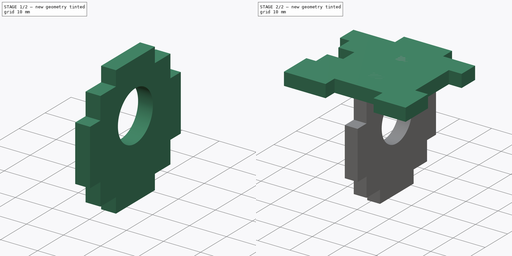
[diagram: build sequence overview — one tinted view per stage of 2, left to right]
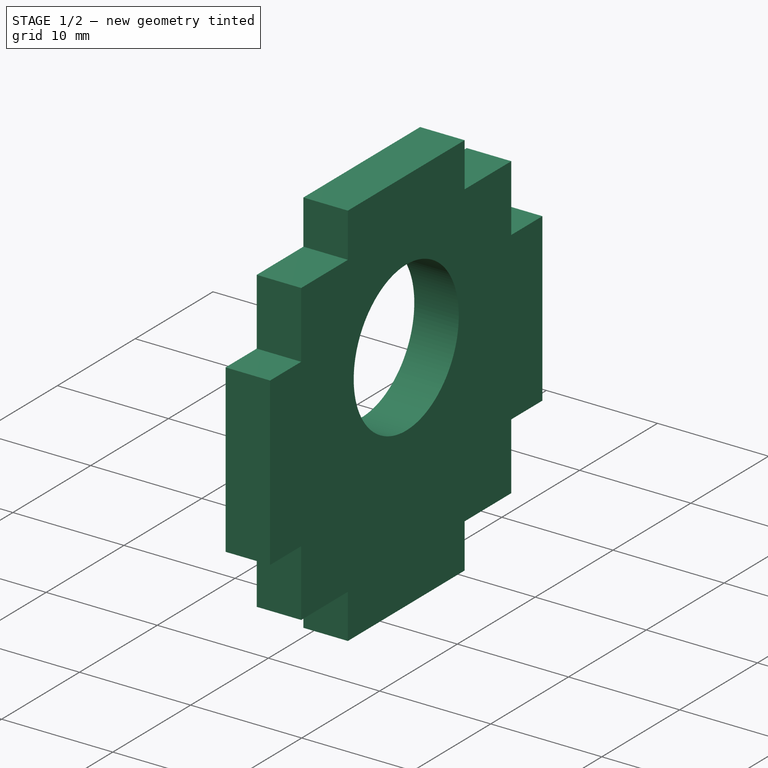
[diagram: stage 1 of 2 — iso view after this stage's code; geometry added in this stage tinted green]
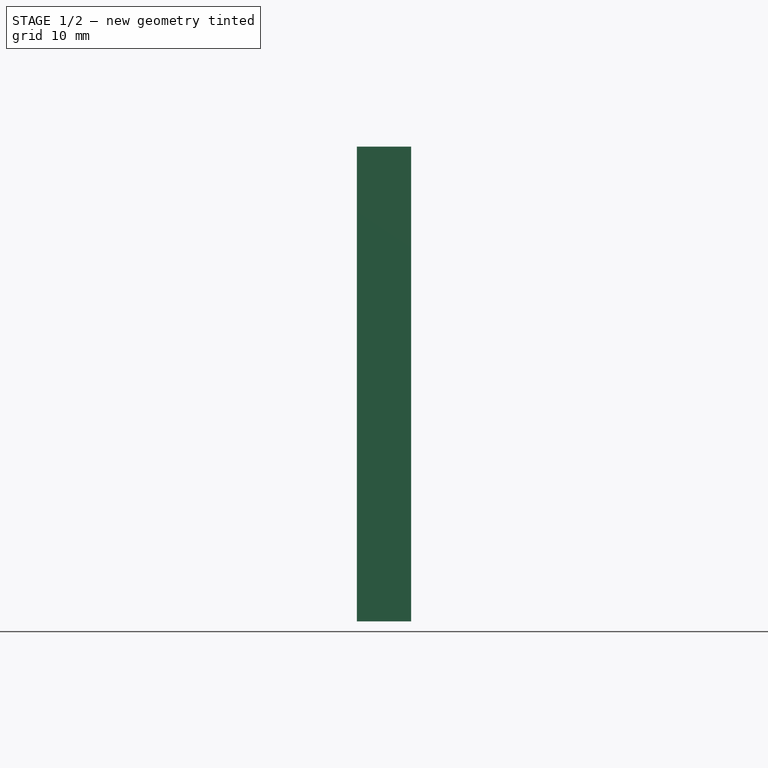
[diagram: stage 1 of 2 — front view after this stage's code; geometry added in this stage tinted green]
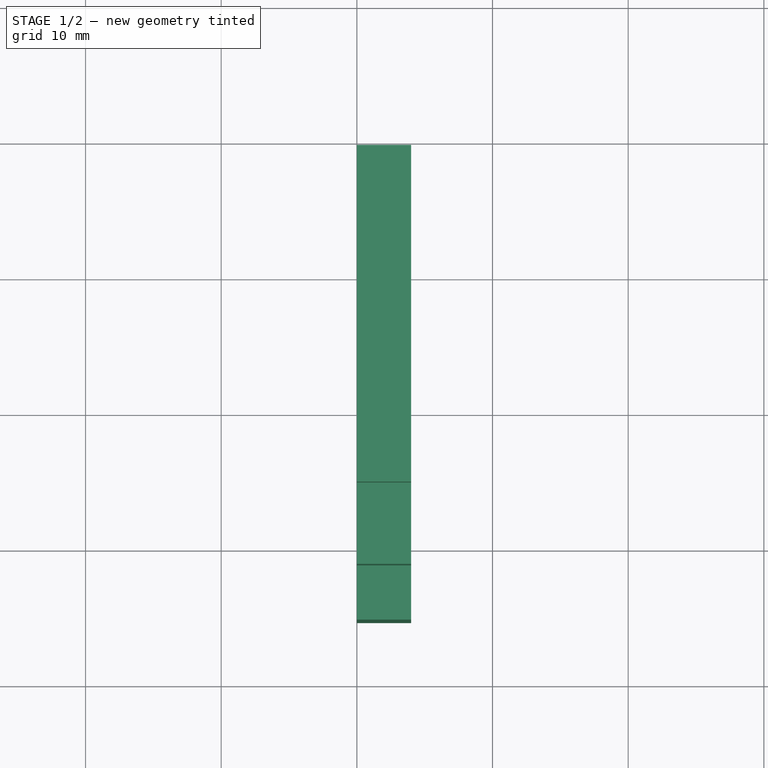
[diagram: stage 1 of 2 — top view after this stage's code; geometry added in this stage tinted green]
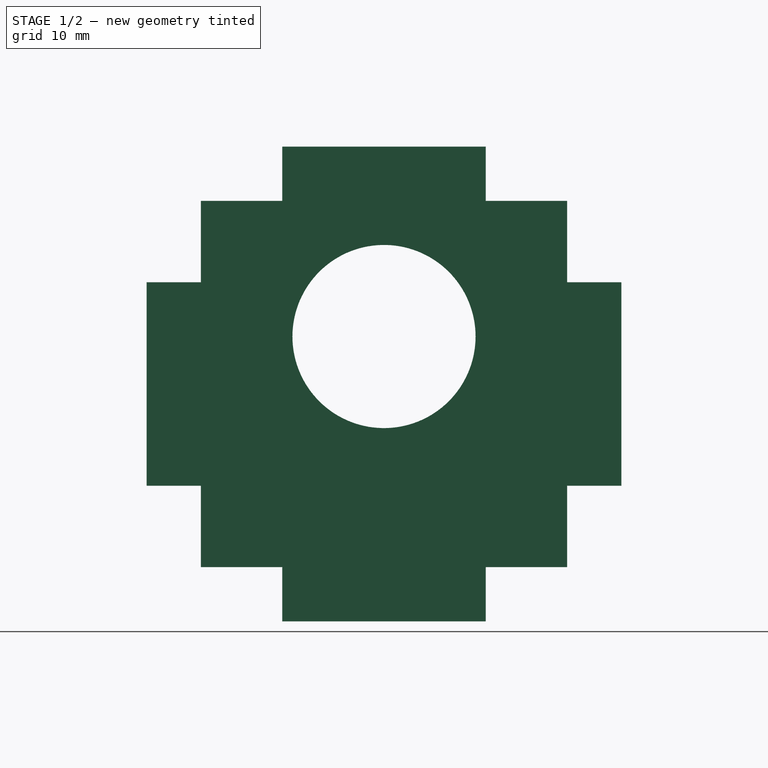
[diagram: stage 1 of 2 — right view after this stage's code; geometry added in this stage tinted green]
FCSTD DOCUMENT  (FreeCAD 0.19R24291 (Git))
Label: ButtonBox
License: All rights reserved
LicenseURL: http://en.wikipedia.org/wiki/All_rights_reserved
objects: Sketcher::SketchObject×2, PartDesign::Pad×2, PartDesign::Body×2, TechDraw::DrawViewPart×2, TechDraw::DrawSVGTemplate×1, TechDraw::DrawPage×1
note: 8 computed .brp shape members not serialized (recipe doc carries the construction recipe); baked Part::Feature solids carry a one-line shape summary decoded from their .brp

FEATURE [PartDesign::Body] Body  label="Wall"
  Group = -> [Sketch,Pad]
  Origin = -> Origin
  Tip = -> Pad
FEATURE [Sketcher::SketchObject] Sketch001
  FullyConstrained = true
  MapMode = 5
  Placement = pos=(0,0,0) rot=(0.57735,0.57735,0.57735;2.0944rad)
  Support = -> [YZ_Plane001]
  sketch-geometry (21):
    g0: LineSegment StartX=-5.5 StartY=0 StartZ=0 EndX=-5.5 EndY=4 EndZ=0
    g1: LineSegment StartX=-5.5 StartY=4 StartZ=0 EndX=9.5 EndY=4 EndZ=0
    g2: LineSegment StartX=9.5 StartY=4 StartZ=0 EndX=9.5 EndY=0 EndZ=0
    g3: LineSegment StartX=9.5 StartY=0 StartZ=0 EndX=15.5 EndY=0 EndZ=0
    g4: LineSegment StartX=15.5 StartY=0 StartZ=0 EndX=15.5 EndY=-6 EndZ=0
    g5: LineSegment StartX=15.5 StartY=-6 StartZ=0 EndX=19.5 EndY=-6 EndZ=0
    g6: LineSegment StartX=19.5 StartY=-6 StartZ=0 EndX=19.5 EndY=-21 EndZ=0
    g7: LineSegment StartX=19.5 StartY=-21 StartZ=0 EndX=15.5 EndY=-21 EndZ=0
    g8: LineSegment StartX=15.5 StartY=-21 StartZ=0 EndX=15.5 EndY=-27 EndZ=0
    g9: LineSegment StartX=15.5 StartY=-27 StartZ=0 EndX=9.5 EndY=-27 EndZ=0
    g10: LineSegment StartX=9.5 StartY=-27 StartZ=0 EndX=9.5 EndY=-31 EndZ=0
    g11: LineSegment StartX=9.5 StartY=-31 StartZ=0 EndX=-5.5 EndY=-31 EndZ=0
    g12: LineSegment StartX=-5.5 StartY=-31 StartZ=0 EndX=-5.5 EndY=-27 EndZ=0
    g13: LineSegment StartX=-5.5 StartY=-27 StartZ=0 EndX=-11.5 EndY=-27 EndZ=0
    g14: LineSegment StartX=-11.5 StartY=-27 StartZ=0 EndX=-11.5 EndY=-21 EndZ=0
    g15: LineSegment StartX=-11.5 StartY=-21 StartZ=0 EndX=-15.5 EndY=-21 EndZ=0
    g16: LineSegment StartX=-15.5 StartY=-21 StartZ=0 EndX=-15.5 EndY=-6 EndZ=0
    g17: LineSegment StartX=-15.5 StartY=-6 StartZ=0 EndX=-11.5 EndY=-6 EndZ=0
    g18: LineSegment StartX=-11.5 StartY=-6 StartZ=0 EndX=-11.5 EndY=0 EndZ=0
    g19: LineSegment StartX=-11.5 StartY=0 StartZ=0 EndX=-5.5 EndY=0 EndZ=0
    g20: Circle CenterX=2 CenterY=-10 CenterZ=0 NormalX=0 NormalY=0 NormalZ=1 AngleXU=0 Radius=6.75
  constraints (63):
    c: PointOnObject(g0,g-1)
    c: Vertical(g0)
    c: Coincident(g0,g1)
    c: Horizontal(g1)
    c: Coincident(g1,g2)
    c: PointOnObject(g2,g-1)
    c: Vertical(g2)
    c: Coincident(g2,g3)
    c: PointOnObject(g3,g-1)
    c: Coincident(g3,g4)
    c: Vertical(g4)
    c: Coincident(g4,g5)
    c: Horizontal(g5)
    c: Coincident(g5,g6)
    c: Vertical(g6)
    c: Coincident(g6,g7)
    c: Horizontal(g7)
    c: Coincident(g7,g8)
    c: Vertical(g8)
    c: Coincident(g8,g9)
    c: Coincident(g9,g10)
    c: Coincident(g10,g11)
    c: Horizontal(g11)
    c: Coincident(g11,g12)
    c: Vertical(g12)
    c: Coincident(g12,g13)
    c: Horizontal(g13)
    c: Coincident(g13,g14)
    c: Vertical(g14)
    c: Coincident(g14,g15)
    c: Horizontal(g15)
    c: Coincident(g15,g16)
    c: Vertical(g16)
    c: Coincident(g16,g17)
    c: Horizontal(g17)
    c: Coincident(g17,g18)
    c: PointOnObject(g18,g-1)
    c: Vertical(g18)
    c: Coincident(g18,g19)
    c: Coincident(g19,g0)
    c: DistanceX(g11,g11) = 15
    c: Vertical(g10)
    c: Horizontal(g9)
    c: Equal(g11,g16)
    c: Equal(g11,g1)
    c: Equal(g11,g6)
    c: DistanceY(g10,g10) = 4
    c: Equal(g10,g7)
    c: Equal(g7,g5)
    c: Equal(g5,g2)
    c: Equal(g0,g17)
    c: Equal(g17,g15)
    c: Equal(g15,g12)
    c: DistanceY(g14,g14) = 6
    c: Equal(g9,g13)
    c: Equal(g13,g14)
    c: Equal(g4,g3)
    c: Equal(g3,g19)
    c: Equal(g19,g18)
    c: DistanceX(g0,g-1) = 5.5
    c: Diameter(g20) = 13.5
    c: DistanceX(g17,g20) = 13.5
    c: DistanceY(g20,g0) = 10
FEATURE [PartDesign::Pad] Pad001
  Direction = (1,1,1)
  Length = 4
  Length2 = 100
  Placement = pos=(0,0,0) rot=(0.57735,0.57735,0.57735;2.0944rad)
  Profile = -> Sketch001
  Refine = true
  Type = 0
FEATURE [PartDesign::Body] Body001  label="Cover"
  Group = -> [Sketch001,Pad001]
  Origin = -> Origin001
  Tip = -> Pad001
FEATURE [TechDraw::DrawSVGTemplate] Template
  Height = 210
  Orientation = 1
  Width = 297
FEATURE [TechDraw::DrawViewPart] View001
  CoarseView = false
  Direction = (0,0,1)
  Focus = 100
  HardHidden = false
  IsoCount = 0
  IsoHidden = false
  IsoVisible = false
  LockPosition = false
  Perspective = false
  Rotation = 0
  ScaleType = 0
  SeamHidden = false
  SeamVisible = true
  SmoothHidden = false
  SmoothVisible = true
  Source = -> [Pad]
  X = 89.8623
  XDirection = (1,0,0)
  Y = 161.406
FEATURE [TechDraw::DrawViewPart] View
  CoarseView = false
  Direction = (1,0,0)
  Focus = 100
  HardHidden = false
  IsoCount = 0
  IsoHidden = false
  IsoVisible = false
  LockPosition = false
  Perspective = false
  Rotation = 0
  ScaleType = 0
  SeamHidden = false
  SeamVisible = true
  SmoothHidden = false
  SmoothVisible = true
  Source = -> [Pad001]
  X = 88.8478
  XDirection = (0,1,0)
  Y = 113.116
FEATURE [TechDraw::DrawPage] Page
  KeepUpdated = true
  NextBalloonIndex = 1
  ProjectionType = 0
  Template = -> Template
  Views = -> [View001,View]
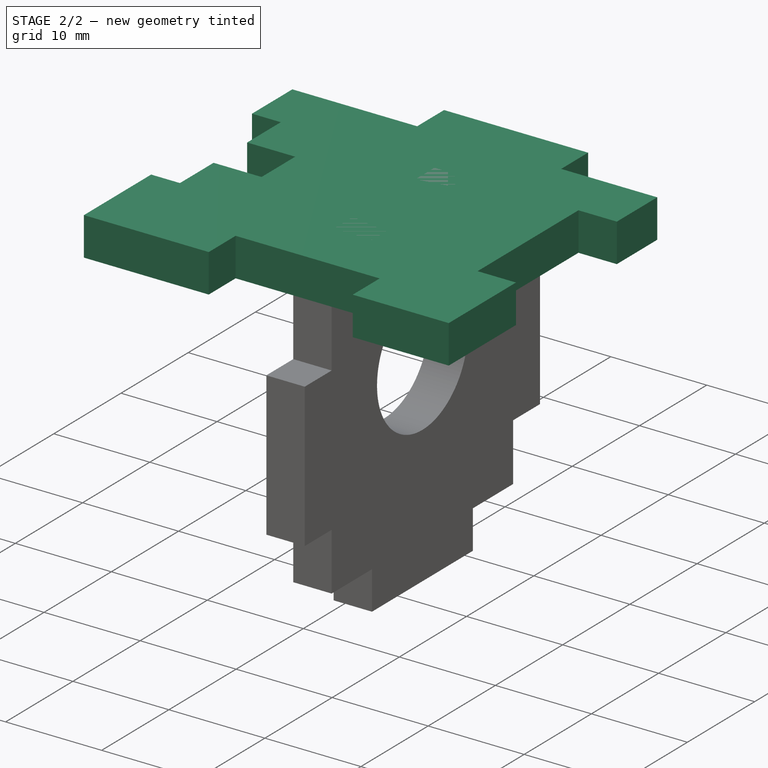
[diagram: stage 2 of 2 — iso view after this stage's code; geometry added in this stage tinted green]
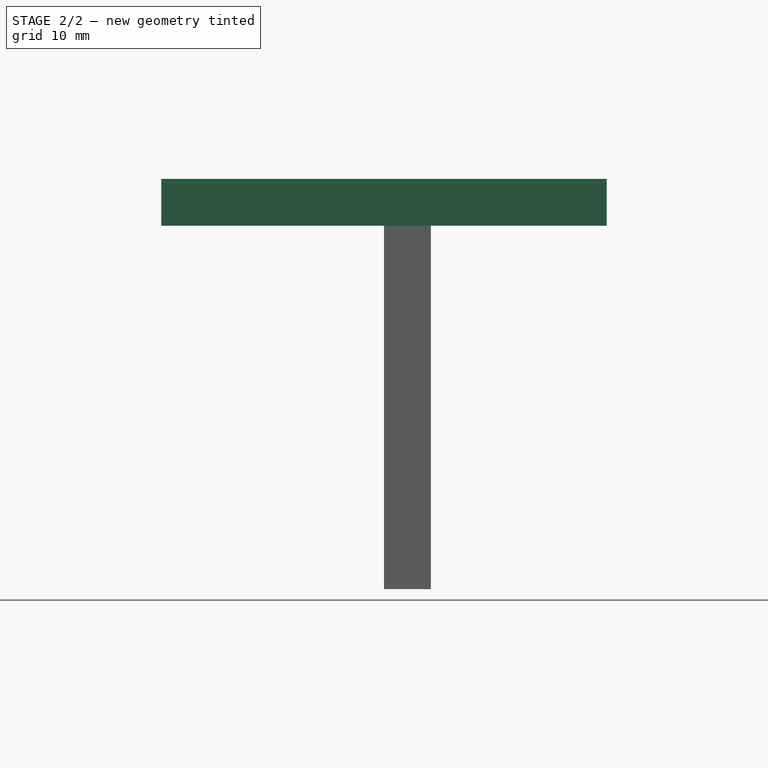
[diagram: stage 2 of 2 — front view after this stage's code; geometry added in this stage tinted green]
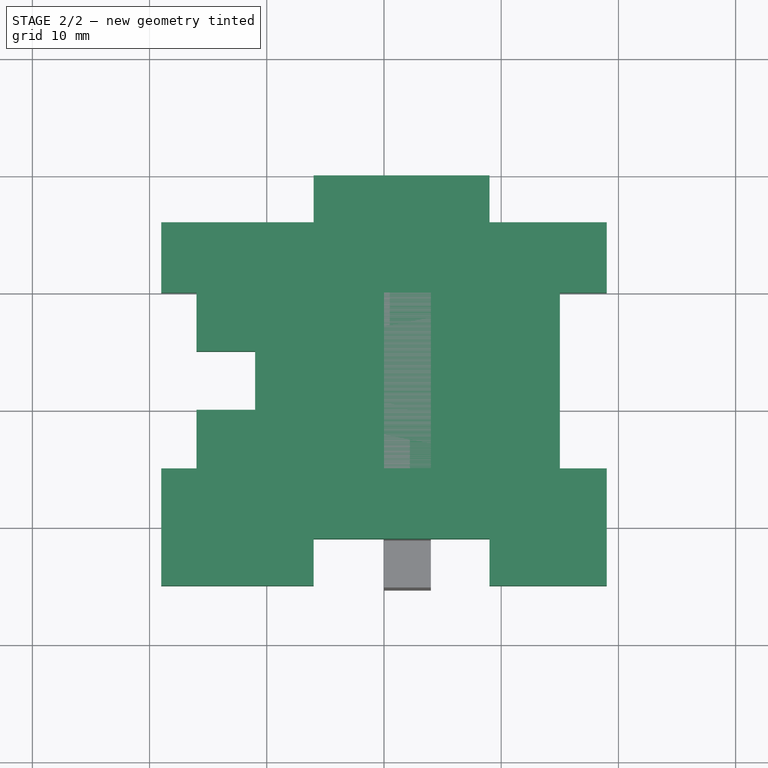
[diagram: stage 2 of 2 — top view after this stage's code; geometry added in this stage tinted green]
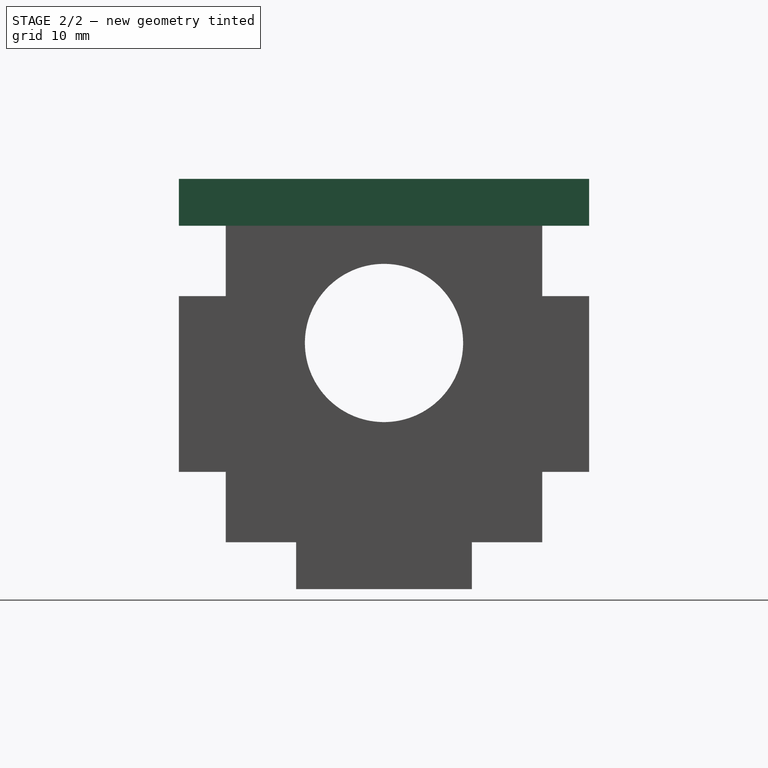
[diagram: stage 2 of 2 — right view after this stage's code; geometry added in this stage tinted green]
FEATURE [Sketcher::SketchObject] Sketch
  FullyConstrained = true
  MapMode = 5
  Support = -> [XY_Plane]
  sketch-geometry (24):
    g0: LineSegment StartX=-19 StartY=15.5 StartZ=0 EndX=-6 EndY=15.5 EndZ=0
    g1: LineSegment StartX=-6 StartY=15.5 StartZ=0 EndX=-6 EndY=19.5 EndZ=0
    g2: LineSegment StartX=-6 StartY=19.5 StartZ=0 EndX=9 EndY=19.5 EndZ=0
    g3: LineSegment StartX=9 StartY=19.5 StartZ=0 EndX=9 EndY=15.5 EndZ=0
    g4: LineSegment StartX=9 StartY=15.5 StartZ=0 EndX=19 EndY=15.5 EndZ=0
    g5: LineSegment StartX=19 StartY=15.5 StartZ=0 EndX=19 EndY=9.5 EndZ=0
    g6: LineSegment StartX=19 StartY=9.5 StartZ=0 EndX=15 EndY=9.5 EndZ=0
    g7: LineSegment StartX=15 StartY=9.5 StartZ=0 EndX=15 EndY=-5.5 EndZ=0
    g8: LineSegment StartX=15 StartY=-5.5 StartZ=0 EndX=19 EndY=-5.5 EndZ=0
    g9: LineSegment StartX=19 StartY=-5.5 StartZ=0 EndX=19 EndY=-15.5 EndZ=0
    g10: LineSegment StartX=19 StartY=-15.5 StartZ=0 EndX=9 EndY=-15.5 EndZ=0
    g11: LineSegment StartX=9 StartY=-15.5 StartZ=0 EndX=9 EndY=-11.5 EndZ=0
    g12: LineSegment StartX=9 StartY=-11.5 StartZ=0 EndX=-6 EndY=-11.5 EndZ=0
    g13: LineSegment StartX=-6 StartY=-11.5 StartZ=0 EndX=-6 EndY=-15.5 EndZ=0
    g14: LineSegment StartX=-6 StartY=-15.5 StartZ=0 EndX=-19 EndY=-15.5 EndZ=0
    g15: LineSegment StartX=-19 StartY=-15.5 StartZ=0 EndX=-19 EndY=-5.5 EndZ=0
    g16: LineSegment StartX=-19 StartY=-5.5 StartZ=0 EndX=-16 EndY=-5.5 EndZ=0
    g17: LineSegment StartX=-16 StartY=-5.5 StartZ=0 EndX=-16 EndY=-0.5 EndZ=0
    g18: LineSegment StartX=-16 StartY=-0.5 StartZ=0 EndX=-11 EndY=-0.5 EndZ=0
    g19: LineSegment StartX=-11 StartY=-0.5 StartZ=0 EndX=-11 EndY=4.5 EndZ=0
    g20: LineSegment StartX=-11 StartY=4.5 StartZ=0 EndX=-16 EndY=4.5 EndZ=0
    g21: LineSegment StartX=-16 StartY=4.5 StartZ=0 EndX=-16 EndY=9.5 EndZ=0
    g22: LineSegment StartX=-16 StartY=9.5 StartZ=0 EndX=-19 EndY=9.5 EndZ=0
    g23: LineSegment StartX=-19 StartY=9.5 StartZ=0 EndX=-19 EndY=15.5 EndZ=0
  constraints (71):
    c: Horizontal(g0)
    c: Coincident(g0,g1)
    c: Vertical(g1)
    c: Coincident(g1,g2)
    c: Horizontal(g2)
    c: Vertical(g3)
    c: Coincident(g3,g4)
    c: Horizontal(g4)
    c: Coincident(g4,g5)
    c: Vertical(g5)
    c: Coincident(g5,g6)
    c: Horizontal(g6)
    c: Coincident(g6,g7)
    c: Vertical(g7)
    c: Coincident(g7,g8)
    c: Horizontal(g8)
    c: Coincident(g8,g9)
    c: Vertical(g9)
    c: Coincident(g9,g10)
    c: Horizontal(g10)
    c: Coincident(g10,g11)
    c: Vertical(g11)
    c: Coincident(g11,g12)
    c: Horizontal(g12)
    c: Coincident(g12,g13)
    c: Vertical(g13)
    c: Coincident(g13,g14)
    c: Horizontal(g14)
    c: Vertical(g15)
    c: Coincident(g15,g16)
    c: Horizontal(g16)
    c: Coincident(g16,g17)
    c: Vertical(g17)
    c: Coincident(g17,g18)
    c: Horizontal(g18)
    c: Coincident(g18,g19)
    c: Vertical(g19)
    c: Coincident(g19,g20)
    c: Horizontal(g20)
    c: Coincident(g20,g21)
    c: Vertical(g21)
    c: Coincident(g21,g22)
    c: Horizontal(g22)
    c: Coincident(g22,g23)
    c: Coincident(g23,g0)
    c: Vertical(g23)
    c: DistanceY(g21,g21) = 5
    c: Equal(g21,g17)
    c: DistanceX(g18,g18) = 5
    c: Equal(g20,g18)
    c: Equal(g19,g20)
    c: Coincident(g14,g15)
    c: DistanceY(g23,g23) = 6
    c: DistanceY(g1,g1) = 4
    c: Coincident(g2,g3)
    c: DistanceX(g2,g2) = 15
    c: Equal(g12,g2)
    c: Equal(g1,g3)
    c: Equal(g3,g6)
    c: Equal(g6,g8)
    c: Equal(g8,g11)
    c: Equal(g11,g13)
    c: DistanceX(g22,g22) = 3
    c: Equal(g16,g22)
    c: DistanceX(g0,g0) = 13
    c: Equal(g0,g14)
    c: DistanceX(g4,g4) = 10
    c: Equal(g5,g23)
    c: DistanceY(g15,g15) = 10
    c: Equal(g9,g15)
    c: Symmetric(g0,g9,g-1)
FEATURE [PartDesign::Pad] Pad
  Direction = (1,1,1)
  Length = 4
  Length2 = 100
  Profile = -> Sketch
  Refine = true
  Type = 0
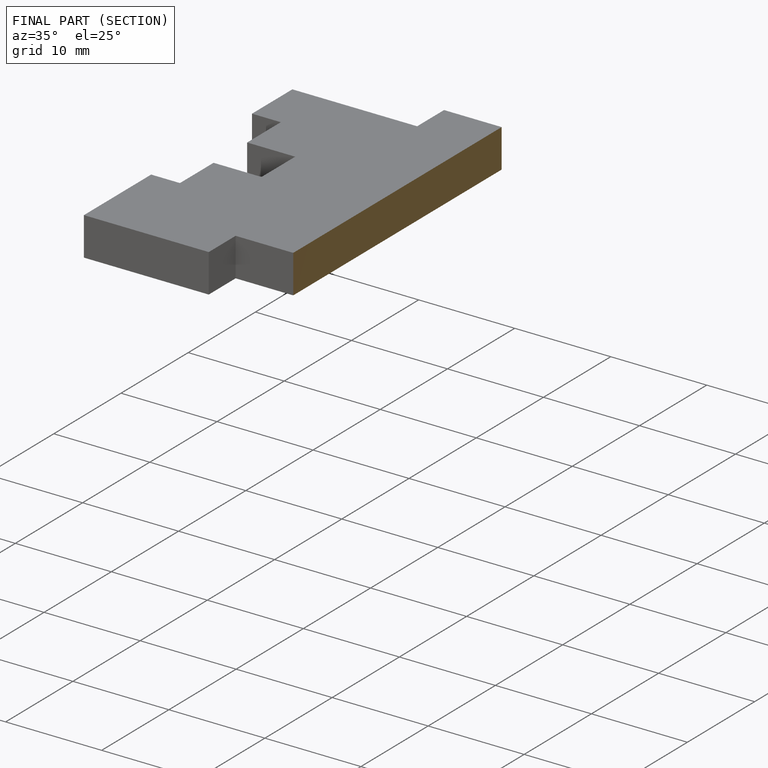
[diagram: finished part — half-section view (interior)]
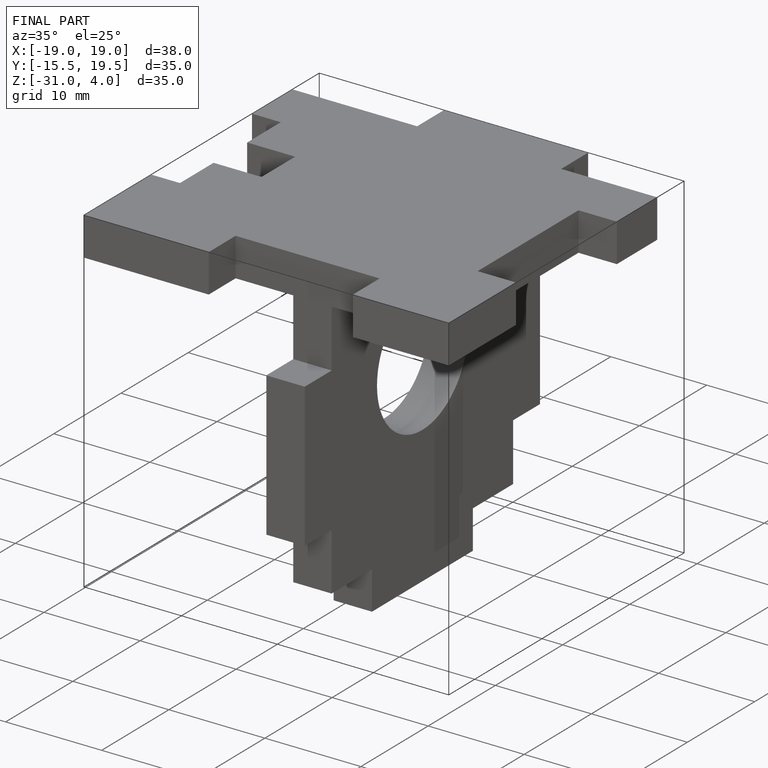
[diagram: finished part — iso view with bounding-box wireframe]
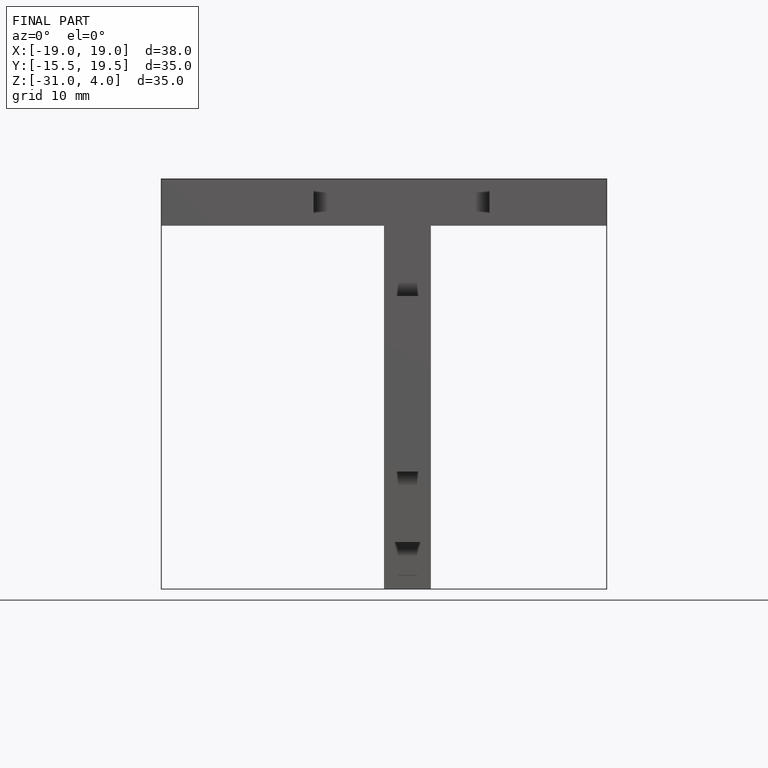
[diagram: finished part — front view with bounding-box wireframe]
